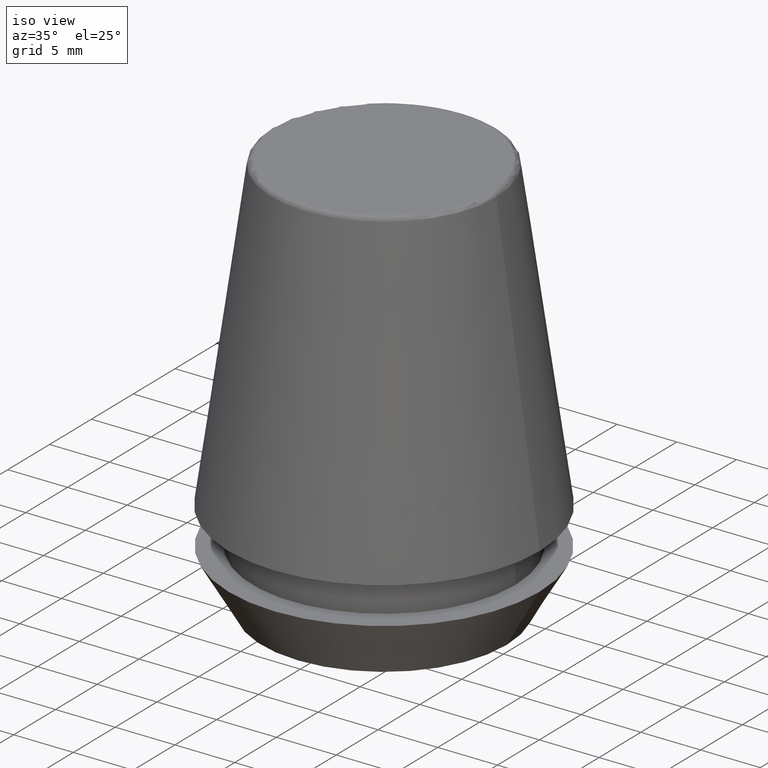
[diagram: clean part render]
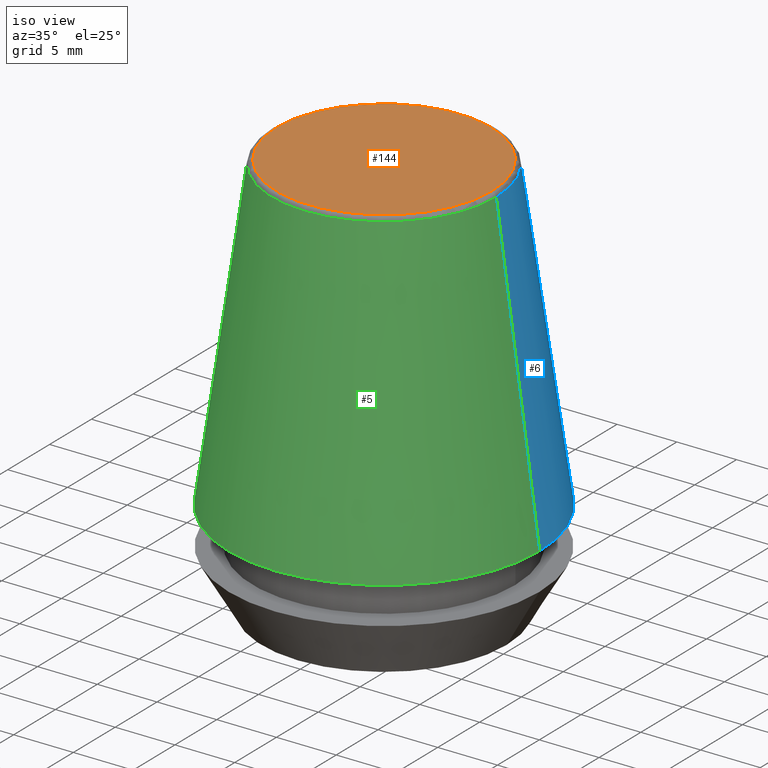
[diagram: same view with three faces highlighted in distinct colors, each labeled with its STEP entity id]
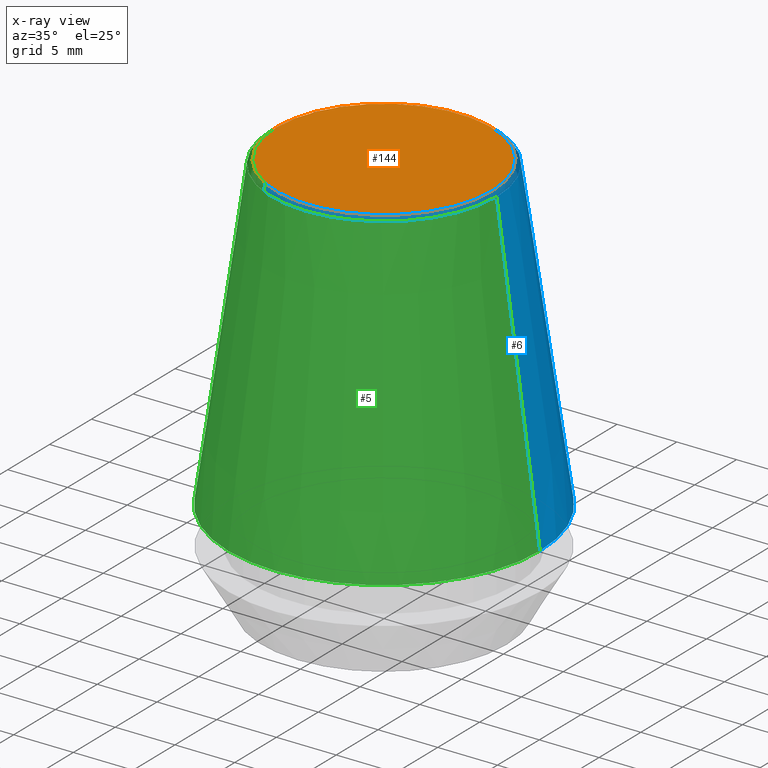
[diagram: x-ray of the same camera — body ghosted, the three highlighted faces saturated]
A machine part, iso view with three faces highlighted in distinct colors.
The next image is the same camera in x-ray (body ghosted, the three faces saturated) — at least one of them is partly hidden behind the body in this view.
Their STEP definitions:

[orange] entity #144 — the highlighted planar face has unit normal (0, 0, -1).
#19 = CARTESIAN_POINT ( 'NONE',  ( -9.012603057622234500, 1.127980121063915600E-015, 34.00000000000000000 ) ) ;
#22 = EDGE_LOOP ( 'NONE', ( #97, #268 ) ) ;
#30 = VERTEX_POINT ( 'NONE', #19 ) ;
#67 = DIRECTION ( 'NONE',  ( -0.0000000000000000000, -0.0000000000000000000, 1.000000000000000000 ) ) ;
#81 = DIRECTION ( 'NONE',  ( 1.000000000000000000, 0.0000000000000000000, 0.0000000000000000000 ) ) ;
#82 = CARTESIAN_POINT ( 'NONE',  ( 0.0000000000000000000, 9.012603057622234500, 34.00000000000000000 ) ) ;
#97 = ORIENTED_EDGE ( 'NONE', *, *, #171, .T. ) ;
#108 = CIRCLE ( 'NONE', #154, 9.012603057622234500 ) ;
#141 = DIRECTION ( 'NONE',  ( 1.000000000000000000, 0.0000000000000000000, 0.0000000000000000000 ) ) ;
#144 = ADVANCED_FACE ( 'NONE', ( #192 ), #207, .F. ) ;
#146 = DIRECTION ( 'NONE',  ( -1.000000000000000000, 0.0000000000000000000, -0.0000000000000000000 ) ) ;
#147 = EDGE_CURVE ( 'NONE', #30, #160, #342, .T. ) ;
#154 = AXIS2_PLACEMENT_3D ( 'NONE', #372, #67, #141 ) ;
#160 = VERTEX_POINT ( 'NONE', #315 ) ;
#171 = EDGE_CURVE ( 'NONE', #160, #30, #108, .T. ) ;
#192 = FACE_OUTER_BOUND ( 'NONE', #22, .T. ) ;
#206 = CARTESIAN_POINT ( 'NONE',  ( 0.0000000000000000000, 0.0000000000000000000, 34.00000000000000000 ) ) ;
#207 = PLANE ( 'NONE',  #343 ) ;
#263 = DIRECTION ( 'NONE',  ( -0.0000000000000000000, -0.0000000000000000000, 1.000000000000000000 ) ) ;
#265 = DIRECTION ( 'NONE',  ( 0.0000000000000000000, 0.0000000000000000000, -1.000000000000000000 ) ) ;
#268 = ORIENTED_EDGE ( 'NONE', *, *, #147, .T. ) ;
#315 = CARTESIAN_POINT ( 'NONE',  ( 9.012603057622234500, 0.0000000000000000000, 34.00000000000000000 ) ) ;
#340 = AXIS2_PLACEMENT_3D ( 'NONE', #206, #263, #81 ) ;
#342 = CIRCLE ( 'NONE', #340, 9.012603057622234500 ) ;
#343 = AXIS2_PLACEMENT_3D ( 'NONE', #82, #265, #146 ) ;
#372 = CARTESIAN_POINT ( 'NONE',  ( 0.0000000000000000000, 0.0000000000000000000, 34.00000000000000000 ) ) ;

[blue] entity #6 — the highlighted conical surface has half-angle 8 deg.
#6 = ADVANCED_FACE ( 'NONE', ( #253 ), #374, .T. ) ;
#7 = VERTEX_POINT ( 'NONE', #52 ) ;
#35 = LINE ( 'NONE', #194, #95 ) ;
#37 = DIRECTION ( 'NONE',  ( 1.000000000000000000, 0.0000000000000000000, 0.0000000000000000000 ) ) ;
#52 = CARTESIAN_POINT ( 'NONE',  ( -13.03657776635556700, 0.0000000000000000000, 7.842050807568876200 ) ) ;
#73 = CARTESIAN_POINT ( 'NONE',  ( 0.0000000000000000000, 0.0000000000000000000, 7.842050807568876200 ) ) ;
#77 = CIRCLE ( 'NONE', #175, 13.03657776635556700 ) ;
#91 = ORIENTED_EDGE ( 'NONE', *, *, #220, .T. ) ;
#95 = VECTOR ( 'NONE', #98, 1000.000000000000000 ) ;
#98 = DIRECTION ( 'NONE',  ( 0.1391731009600587800, 1.704378926181474000E-017, -0.9902680687415712500 ) ) ;
#101 = CARTESIAN_POINT ( 'NONE',  ( -13.03657776635556700, 0.0000000000000000000, 7.842050807568876200 ) ) ;
#103 = VERTEX_POINT ( 'NONE', #347 ) ;
#139 = VERTEX_POINT ( 'NONE', #316 ) ;
#161 = VECTOR ( 'NONE', #174, 1000.000000000000000 ) ;
#163 = EDGE_LOOP ( 'NONE', ( #367, #221, #91, #288 ) ) ;
#164 = CARTESIAN_POINT ( 'NONE',  ( 9.408710285118862900, 1.374377508408924700E-015, 33.65566924038402900 ) ) ;
#174 = DIRECTION ( 'NONE',  ( -0.1391731009600587800, 0.0000000000000000000, -0.9902680687415712500 ) ) ;
#175 = AXIS2_PLACEMENT_3D ( 'NONE', #191, #282, #302 ) ;
#191 = CARTESIAN_POINT ( 'NONE',  ( 0.0000000000000000000, 0.0000000000000000000, 7.842050807568876200 ) ) ;
#194 = CARTESIAN_POINT ( 'NONE',  ( 13.03657776635556700, 1.596520323340289600E-015, 7.842050807568876200 ) ) ;
#196 = EDGE_CURVE ( 'NONE', #321, #139, #325, .T. ) ;
#200 = CARTESIAN_POINT ( 'NONE',  ( 0.0000000000000000000, 0.0000000000000000000, 33.65566924038402900 ) ) ;
#203 = EDGE_CURVE ( 'NONE', #139, #7, #309, .T. ) ;
#205 = EDGE_CURVE ( 'NONE', #321, #103, #35, .T. ) ;
#220 = EDGE_CURVE ( 'NONE', #103, #7, #77, .T. ) ;
#221 = ORIENTED_EDGE ( 'NONE', *, *, #205, .T. ) ;
#231 = AXIS2_PLACEMENT_3D ( 'NONE', #200, #241, #37 ) ;
#241 = DIRECTION ( 'NONE',  ( -0.0000000000000000000, -0.0000000000000000000, 1.000000000000000000 ) ) ;
#244 = AXIS2_PLACEMENT_3D ( 'NONE', #73, #382, #332 ) ;
#253 = FACE_OUTER_BOUND ( 'NONE', #163, .T. ) ;
#282 = DIRECTION ( 'NONE',  ( -0.0000000000000000000, -0.0000000000000000000, 1.000000000000000000 ) ) ;
#288 = ORIENTED_EDGE ( 'NONE', *, *, #203, .F. ) ;
#302 = DIRECTION ( 'NONE',  ( 1.000000000000000000, 0.0000000000000000000, 0.0000000000000000000 ) ) ;
#309 = LINE ( 'NONE', #101, #161 ) ;
#316 = CARTESIAN_POINT ( 'NONE',  ( -9.408710285118862900, 0.0000000000000000000, 33.65566924038402900 ) ) ;
#321 = VERTEX_POINT ( 'NONE', #164 ) ;
#325 = CIRCLE ( 'NONE', #231, 9.408710285118862900 ) ;
#332 = DIRECTION ( 'NONE',  ( -1.000000000000000000, 0.0000000000000000000, 0.0000000000000000000 ) ) ;
#347 = CARTESIAN_POINT ( 'NONE',  ( 13.03657776635556700, 1.596520323340289600E-015, 7.842050807568876200 ) ) ;
#367 = ORIENTED_EDGE ( 'NONE', *, *, #196, .F. ) ;
#374 = CONICAL_SURFACE ( 'NONE', #244, 13.03657776635556700, 0.1396263401595396500 ) ;
#382 = DIRECTION ( 'NONE',  ( 0.0000000000000000000, 0.0000000000000000000, -1.000000000000000000 ) ) ;

[green] entity #5 — the highlighted conical surface has half-angle 8 deg.
#5 = ADVANCED_FACE ( 'NONE', ( #219 ), #291, .T. ) ;
#7 = VERTEX_POINT ( 'NONE', #52 ) ;
#10 = ORIENTED_EDGE ( 'NONE', *, *, #202, .F. ) ;
#26 = EDGE_LOOP ( 'NONE', ( #209, #10, #328, #357 ) ) ;
#35 = LINE ( 'NONE', #194, #95 ) ;
#52 = CARTESIAN_POINT ( 'NONE',  ( -13.03657776635556700, 0.0000000000000000000, 7.842050807568876200 ) ) ;
#60 = AXIS2_PLACEMENT_3D ( 'NONE', #261, #79, #179 ) ;
#66 = CIRCLE ( 'NONE', #60, 13.03657776635556700 ) ;
#68 = CARTESIAN_POINT ( 'NONE',  ( 0.0000000000000000000, 0.0000000000000000000, 7.842050807568876200 ) ) ;
#79 = DIRECTION ( 'NONE',  ( -0.0000000000000000000, -0.0000000000000000000, 1.000000000000000000 ) ) ;
#85 = AXIS2_PLACEMENT_3D ( 'NONE', #276, #362, #248 ) ;
#95 = VECTOR ( 'NONE', #98, 1000.000000000000000 ) ;
#98 = DIRECTION ( 'NONE',  ( 0.1391731009600587800, 1.704378926181474000E-017, -0.9902680687415712500 ) ) ;
#101 = CARTESIAN_POINT ( 'NONE',  ( -13.03657776635556700, 0.0000000000000000000, 7.842050807568876200 ) ) ;
#103 = VERTEX_POINT ( 'NONE', #347 ) ;
#116 = DIRECTION ( 'NONE',  ( 0.0000000000000000000, 0.0000000000000000000, -1.000000000000000000 ) ) ;
#135 = CIRCLE ( 'NONE', #85, 9.408710285118862900 ) ;
#139 = VERTEX_POINT ( 'NONE', #316 ) ;
#153 = EDGE_CURVE ( 'NONE', #7, #103, #66, .T. ) ;
#161 = VECTOR ( 'NONE', #174, 1000.000000000000000 ) ;
#164 = CARTESIAN_POINT ( 'NONE',  ( 9.408710285118862900, 1.374377508408924700E-015, 33.65566924038402900 ) ) ;
#174 = DIRECTION ( 'NONE',  ( -0.1391731009600587800, 0.0000000000000000000, -0.9902680687415712500 ) ) ;
#179 = DIRECTION ( 'NONE',  ( 1.000000000000000000, 0.0000000000000000000, 0.0000000000000000000 ) ) ;
#194 = CARTESIAN_POINT ( 'NONE',  ( 13.03657776635556700, 1.596520323340289600E-015, 7.842050807568876200 ) ) ;
#202 = EDGE_CURVE ( 'NONE', #139, #321, #135, .T. ) ;
#203 = EDGE_CURVE ( 'NONE', #139, #7, #309, .T. ) ;
#205 = EDGE_CURVE ( 'NONE', #321, #103, #35, .T. ) ;
#209 = ORIENTED_EDGE ( 'NONE', *, *, #205, .F. ) ;
#219 = FACE_OUTER_BOUND ( 'NONE', #26, .T. ) ;
#248 = DIRECTION ( 'NONE',  ( 1.000000000000000000, 0.0000000000000000000, 0.0000000000000000000 ) ) ;
#261 = CARTESIAN_POINT ( 'NONE',  ( 0.0000000000000000000, 0.0000000000000000000, 7.842050807568876200 ) ) ;
#271 = AXIS2_PLACEMENT_3D ( 'NONE', #68, #116, #380 ) ;
#276 = CARTESIAN_POINT ( 'NONE',  ( 0.0000000000000000000, 0.0000000000000000000, 33.65566924038402900 ) ) ;
#291 = CONICAL_SURFACE ( 'NONE', #271, 13.03657776635556700, 0.1396263401595396500 ) ;
#309 = LINE ( 'NONE', #101, #161 ) ;
#316 = CARTESIAN_POINT ( 'NONE',  ( -9.408710285118862900, 0.0000000000000000000, 33.65566924038402900 ) ) ;
#321 = VERTEX_POINT ( 'NONE', #164 ) ;
#328 = ORIENTED_EDGE ( 'NONE', *, *, #203, .T. ) ;
#347 = CARTESIAN_POINT ( 'NONE',  ( 13.03657776635556700, 1.596520323340289600E-015, 7.842050807568876200 ) ) ;
#357 = ORIENTED_EDGE ( 'NONE', *, *, #153, .T. ) ;
#362 = DIRECTION ( 'NONE',  ( -0.0000000000000000000, -0.0000000000000000000, 1.000000000000000000 ) ) ;
#380 = DIRECTION ( 'NONE',  ( -1.000000000000000000, 0.0000000000000000000, 0.0000000000000000000 ) ) ;